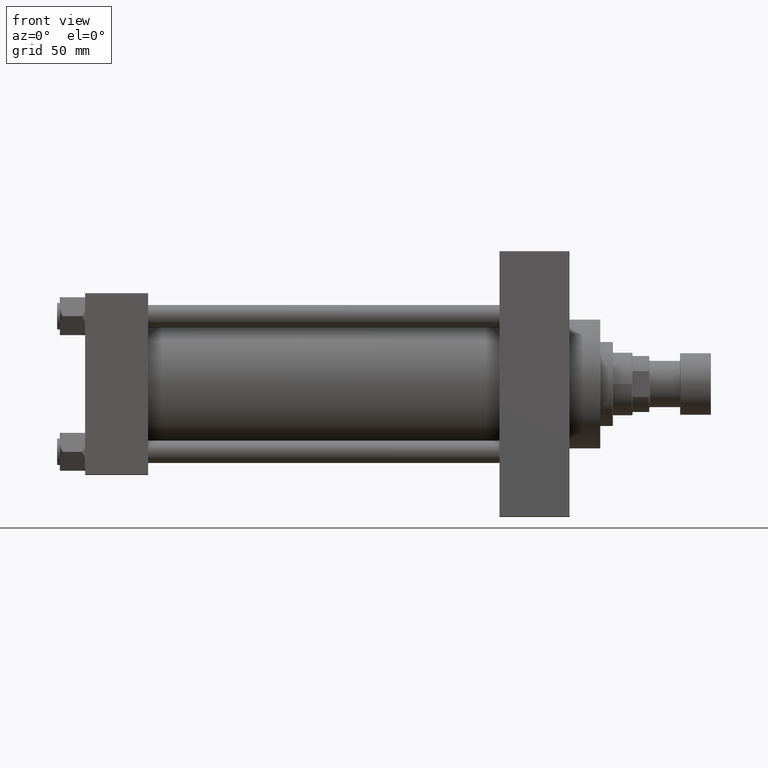
[diagram: clean part render]
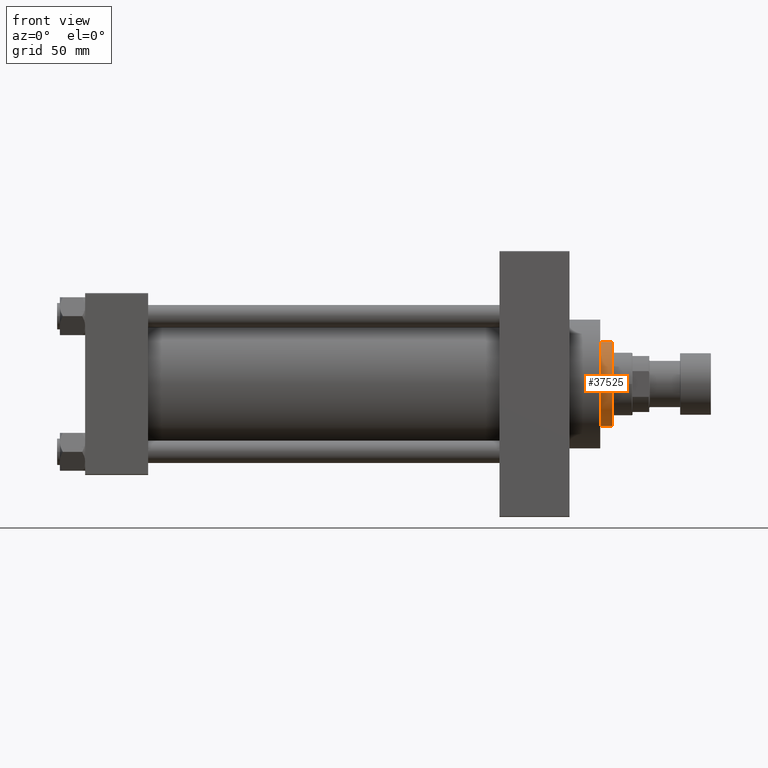
[diagram: same view with one face highlighted and labeled with its STEP entity id]
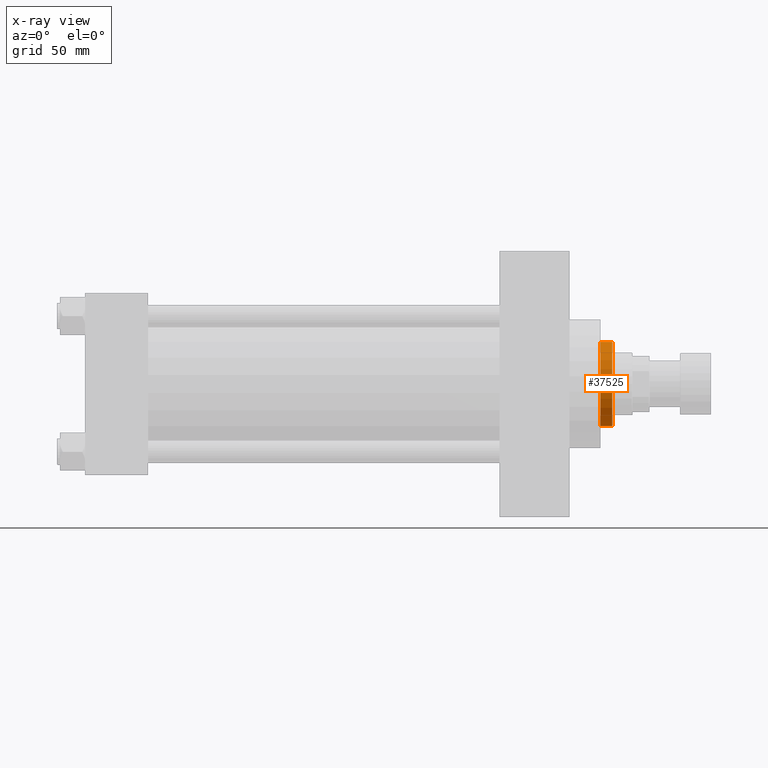
[diagram: x-ray of the same camera — body ghosted, the highlighted face saturated]
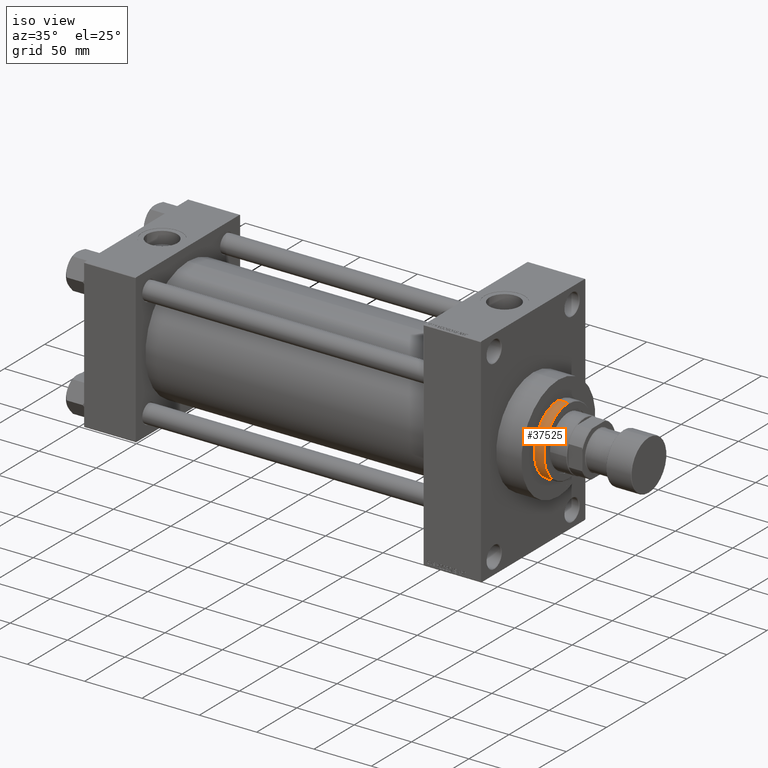
[diagram: same view with one face highlighted and labeled with its STEP entity id]
A machine part, front view. The second image highlights one B-rep face of the part: STEP entity #37525.
The next image is the same camera in x-ray: the body ghosted, the highlighted face saturated — about 0% of this face is hidden behind the body in this view.
A second angle (iso view) of the same face is appended — the face is thin or edge-on in the first view.
In plain terms, the highlighted cylindrical surface (partial cylindrical patch) has radius 30 mm, axis along (-1, 0, 0).
Its self-contained STEP definition (entity closure, byte-faithful):
#3063 = AXIS2_PLACEMENT_3D ( 'NONE', #10062, #41114, #6264 ) ;
#4131 = EDGE_CURVE ( 'NONE', #47241, #27042, #25953, .T. ) ;
#4550 = CYLINDRICAL_SURFACE ( 'NONE', #27685, 30.00000000000000000 ) ;
#6028 = AXIS2_PLACEMENT_3D ( 'NONE', #34632, #25989, #26751 ) ;
#6264 = DIRECTION ( 'NONE',  ( 1.000000000000000000, 0.000000000000000000, 0.000000000000000000 ) ) ;
#8109 = CARTESIAN_POINT ( 'NONE',  ( 0.000000000000000000, 0.000000000000000000, 52.25999999999999801 ) ) ;
#8810 = EDGE_LOOP ( 'NONE', ( #13963, #34812, #12455, #26609 ) ) ;
#10062 = CARTESIAN_POINT ( 'NONE',  ( 0.000000000000000000, 0.000000000000000000, 43.25999999999999801 ) ) ;
#10418 = CARTESIAN_POINT ( 'NONE',  ( 30.00000000000000000, 3.673940397442059178E-15, 43.25999999999999801 ) ) ;
#11193 = DIRECTION ( 'NONE',  ( -0.000000000000000000, -0.000000000000000000, -1.000000000000000000 ) ) ;
#12455 = ORIENTED_EDGE ( 'NONE', *, *, #27642, .T. ) ;
#13963 = ORIENTED_EDGE ( 'NONE', *, *, #20781, .T. ) ;
#14146 = VERTEX_POINT ( 'NONE', #10418 ) ;
#16938 = DIRECTION ( 'NONE',  ( -0.000000000000000000, -0.000000000000000000, -1.000000000000000000 ) ) ;
#18244 = VECTOR ( 'NONE', #16938, 1000.000000000000000 ) ;
#19818 = FACE_OUTER_BOUND ( 'NONE', #8810, .T. ) ;
#20781 = EDGE_CURVE ( 'NONE', #47241, #29996, #27946, .T. ) ;
#22883 = VECTOR ( 'NONE', #11193, 1000.000000000000000 ) ;
#24458 = CARTESIAN_POINT ( 'NONE',  ( -30.00000000000000000, 0.000000000000000000, 43.25999999999999801 ) ) ;
#25953 = LINE ( 'NONE', #45794, #22883 ) ;
#25989 = DIRECTION ( 'NONE',  ( 0.000000000000000000, 0.000000000000000000, -1.000000000000000000 ) ) ;
#26609 = ORIENTED_EDGE ( 'NONE', *, *, #4131, .F. ) ;
#26751 = DIRECTION ( 'NONE',  ( 1.000000000000000000, 0.000000000000000000, 0.000000000000000000 ) ) ;
#27042 = VERTEX_POINT ( 'NONE', #24458 ) ;
#27642 = EDGE_CURVE ( 'NONE', #14146, #27042, #47685, .T. ) ;
#27685 = AXIS2_PLACEMENT_3D ( 'NONE', #8109, #47762, #28180 ) ;
#27946 = CIRCLE ( 'NONE', #6028, 30.00000000000000000 ) ;
#28180 = DIRECTION ( 'NONE',  ( -1.000000000000000000, 0.000000000000000000, 0.000000000000000000 ) ) ;
#29996 = VERTEX_POINT ( 'NONE', #39415 ) ;
#34118 = CARTESIAN_POINT ( 'NONE',  ( -30.00000000000000000, 0.000000000000000000, 51.75999999999999091 ) ) ;
#34632 = CARTESIAN_POINT ( 'NONE',  ( 0.000000000000000000, 0.000000000000000000, 51.75999999999999091 ) ) ;
#34812 = ORIENTED_EDGE ( 'NONE', *, *, #49685, .T. ) ;
#35518 = CARTESIAN_POINT ( 'NONE',  ( 30.00000000000000000, 3.673940397442059178E-15, 52.25999999999999801 ) ) ;
#37525 = ADVANCED_FACE ( 'NONE', ( #19818 ), #4550, .T. ) ;
#39415 = CARTESIAN_POINT ( 'NONE',  ( 30.00000000000000000, 3.673940397442059178E-15, 51.75999999999999091 ) ) ;
#39835 = LINE ( 'NONE', #35518, #18244 ) ;
#41114 = DIRECTION ( 'NONE',  ( 0.000000000000000000, 0.000000000000000000, 1.000000000000000000 ) ) ;
#45794 = CARTESIAN_POINT ( 'NONE',  ( -30.00000000000000000, 0.000000000000000000, 52.25999999999999801 ) ) ;
#47241 = VERTEX_POINT ( 'NONE', #34118 ) ;
#47685 = CIRCLE ( 'NONE', #3063, 30.00000000000000000 ) ;
#47762 = DIRECTION ( 'NONE',  ( -0.000000000000000000, -0.000000000000000000, -1.000000000000000000 ) ) ;
#49685 = EDGE_CURVE ( 'NONE', #29996, #14146, #39835, .T. ) ;